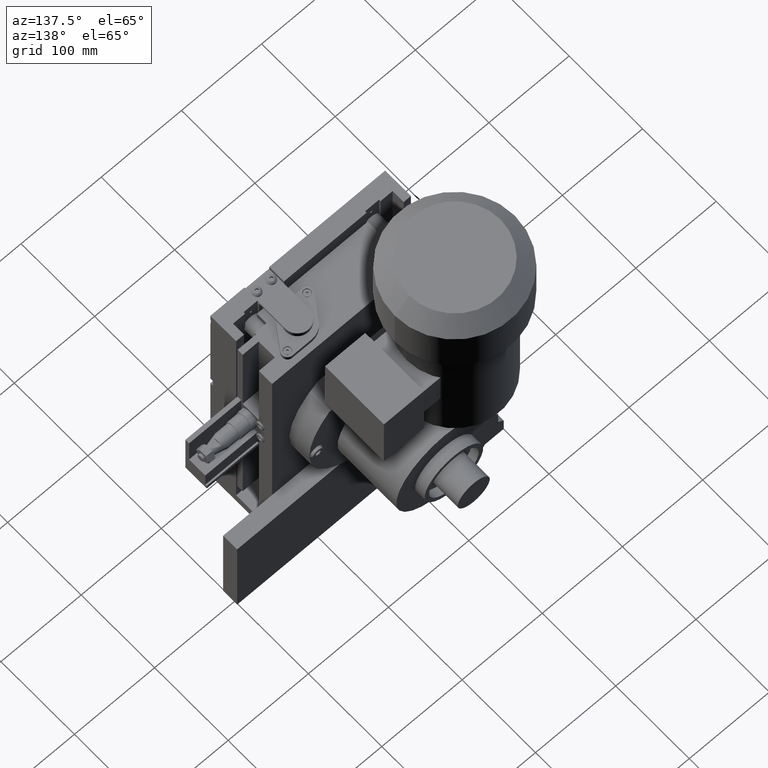
[diagram: clean part render]
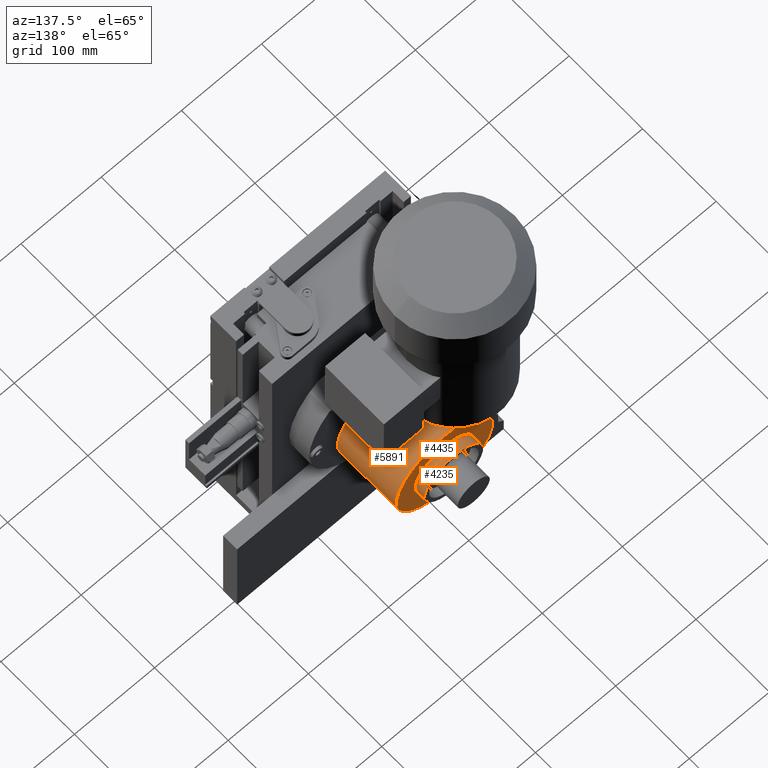
[diagram: same view with one multi-face feature highlighted, each face labeled with its STEP entity id]
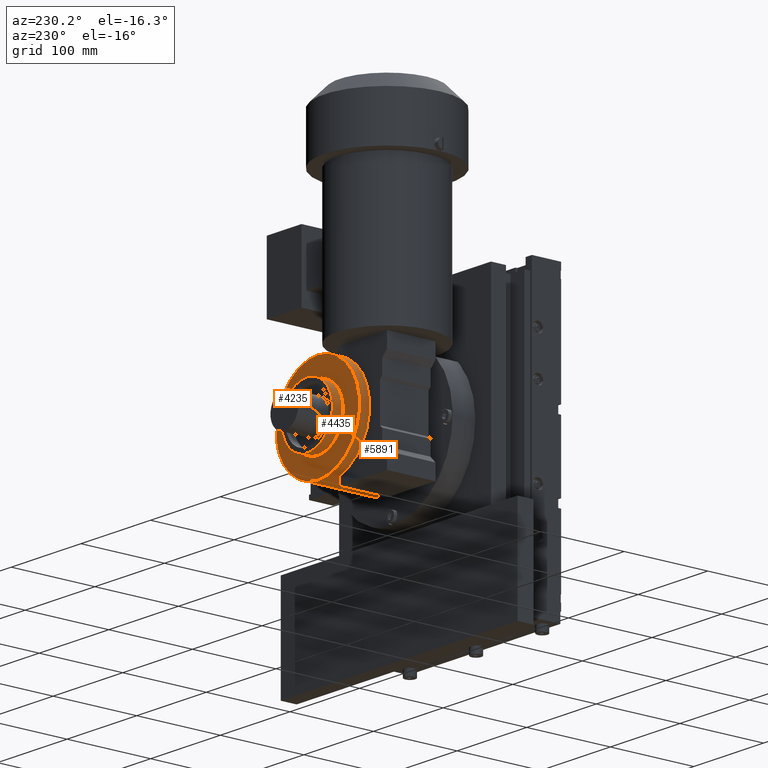
[diagram: same view with one multi-face feature highlighted, each face labeled with its STEP entity id]
A machine part, auxiliary view. The highlighted faces form ONE feature: a stepped (counterbored) hole: 2 coaxial cylindrical walls of radii 36.5 -> 60 mm joined by 1 annular planar shoulder face(s). The faces share edges in the B-rep.
A second angle (auxiliary view) of the same feature is appended — it is thin or edge-on in the first view.
Their STEP definitions:
[1] entity #5891 (Cylinder):
#5891=ADVANCED_FACE('',(#12133,#12134,#12135),#12136,.T.);
#12133=FACE_BOUND('',#21507,.T.);
#12134=FACE_OUTER_BOUND('',#21508,.T.);
#12135=FACE_OUTER_BOUND('',#21509,.T.);
#12136=CYLINDRICAL_SURFACE('',#21510,60.0000000000000);
#21507=EDGE_LOOP('',(#34760,#34761,#34762,#34763));
#21508=EDGE_LOOP('',(#34764));
#21509=EDGE_LOOP('',(#34765));
#21510=AXIS2_PLACEMENT_3D('',#34766,#34767,#34768);
#34760=ORIENTED_EDGE('',*,*,#52199,.T.);
#34761=ORIENTED_EDGE('',*,*,#48771,.F.);
#34762=ORIENTED_EDGE('',*,*,#52200,.F.);
#34763=ORIENTED_EDGE('',*,*,#52201,.F.);
#34764=ORIENTED_EDGE('',*,*,#48273,.F.);
#34765=ORIENTED_EDGE('',*,*,#49624,.T.);
#34766=CARTESIAN_POINT('',(34.5307407501678,4.55051521335584,-608.967946454535));
#34767=DIRECTION('',(0.000000000000000,-1.00000000000000,0.000000000000000));
#34768=DIRECTION('',(0.000000000000000,0.000000000000000,1.00000000000000));
#48273=EDGE_CURVE('',#56567,#56567,#56568,.T.);
#48771=EDGE_CURVE('',#57460,#57461,#57462,.T.);
#49624=EDGE_CURVE('',#58933,#58933,#58934,.T.);
#52199=EDGE_CURVE('',#63066,#57461,#63067,.F.);
#52200=EDGE_CURVE('',#63068,#57460,#63069,.F.);
#52201=EDGE_CURVE('',#63066,#63068,#63070,.F.);
#56567=VERTEX_POINT('',#68730);
#56568=CIRCLE('',#68731,60.0000000000000);
#57460=VERTEX_POINT('',#70112);
#57461=VERTEX_POINT('',#70113);
#57462=LINE('',#70114,#70115);
#58933=VERTEX_POINT('',#72246);
#58934=CIRCLE('',#72247,60.0000000000000);
#63066=VERTEX_POINT('',#78398);
#63067=CIRCLE('',#78399,60.0000000000000);
#63068=VERTEX_POINT('',#78400);
#63069=CIRCLE('',#78401,60.0000000000000);
#63070=LINE('',#78402,#78403);
#68730=CARTESIAN_POINT('',(34.5307407501678,4.55051521335584,-668.967946454535));
#68731=AXIS2_PLACEMENT_3D('',#85946,#85947,#85948);
#70112=CARTESIAN_POINT('',(18.5307407501678,-7.44948478664413,-666.795275633739));
#70113=CARTESIAN_POINT('',(18.5307407501678,-65.4494847866441,-666.795275633739));
#70114=CARTESIAN_POINT('',(18.5307407501678,4.55051521335584,-666.795275633739));
#70115=VECTOR('',#86415,1.00000000000000);
#72246=CARTESIAN_POINT('',(34.5307407501678,-75.4494847866442,-668.967946454535));
#72247=AXIS2_PLACEMENT_3D('',#87210,#87211,#87212);
#78398=CARTESIAN_POINT('',(18.5307407501678,-65.4494847866441,-551.140617275331));
#78399=AXIS2_PLACEMENT_3D('',#89540,#89541,#89542);
#78400=CARTESIAN_POINT('',(18.5307407501678,-7.44948478664413,-551.140617275331));
#78401=AXIS2_PLACEMENT_3D('',#89543,#89544,#89545);
#78402=CARTESIAN_POINT('',(18.5307407501678,4.55051521335584,-551.140617275331));
#78403=VECTOR('',#89546,1.00000000000000);
#85946=CARTESIAN_POINT('',(34.5307407501678,4.55051521335584,-608.967946454535));
#85947=DIRECTION('',(0.000000000000000,1.00000000000000,0.000000000000000));
#85948=DIRECTION('',(0.000000000000000,0.000000000000000,-1.00000000000000));
#86415=DIRECTION('',(0.000000000000000,-1.00000000000000,0.000000000000000));
#87210=CARTESIAN_POINT('',(34.5307407501678,-75.4494847866442,-608.967946454535));
#87211=DIRECTION('',(0.000000000000000,1.00000000000000,0.000000000000000));
#87212=DIRECTION('',(0.000000000000000,0.000000000000000,-1.00000000000000));
#89540=CARTESIAN_POINT('',(34.5307407501678,-65.4494847866441,-608.967946454535));
#89541=DIRECTION('',(0.000000000000000,1.00000000000000,0.000000000000000));
#89542=DIRECTION('',(0.000000000000000,0.000000000000000,-1.00000000000000));
#89543=CARTESIAN_POINT('',(34.5307407501678,-7.44948478664413,-608.967946454535));
#89544=DIRECTION('',(0.000000000000000,1.00000000000000,0.000000000000000));
#89545=DIRECTION('',(0.000000000000000,0.000000000000000,-1.00000000000000));
#89546=DIRECTION('',(0.000000000000000,-1.00000000000000,0.000000000000000));
[2] entity #4435 (Cylinder):
#4435=ADVANCED_FACE('',(#9818,#9819),#9820,.T.);
#9818=FACE_OUTER_BOUND('',#18262,.T.);
#9819=FACE_OUTER_BOUND('',#18263,.T.);
#9820=CYLINDRICAL_SURFACE('',#18264,36.5000000000000);
#18262=EDGE_LOOP('',(#28534));
#18263=EDGE_LOOP('',(#28535));
#18264=AXIS2_PLACEMENT_3D('',#28536,#28537,#28538);
#28534=ORIENTED_EDGE('',*,*,#48829,.F.);
#28535=ORIENTED_EDGE('',*,*,#48272,.T.);
#28536=CARTESIAN_POINT('',(34.5307407501678,17.5505152133559,-608.967946454535));
#28537=DIRECTION('',(0.000000000000000,-1.00000000000000,0.000000000000000));
#28538=DIRECTION('',(0.000000000000000,0.000000000000000,1.00000000000000));
#48272=EDGE_CURVE('',#56565,#56565,#56566,.T.);
#48829=EDGE_CURVE('',#57561,#57561,#57562,.T.);
#56565=VERTEX_POINT('',#68728);
#56566=CIRCLE('',#68729,36.5000000000000);
#57561=VERTEX_POINT('',#70255);
#57562=CIRCLE('',#70256,36.5000000000000);
#68728=CARTESIAN_POINT('',(34.5307407501678,4.55051521335584,-645.467946454535));
#68729=AXIS2_PLACEMENT_3D('',#85943,#85944,#85945);
#70255=CARTESIAN_POINT('',(34.5307407501678,17.5505152133559,-645.467946454535));
#70256=AXIS2_PLACEMENT_3D('',#86466,#86467,#86468);
#85943=CARTESIAN_POINT('',(34.5307407501678,4.55051521335584,-608.967946454535));
#85944=DIRECTION('',(0.000000000000000,1.00000000000000,0.000000000000000));
#85945=DIRECTION('',(0.000000000000000,0.000000000000000,-1.00000000000000));
#86466=CARTESIAN_POINT('',(34.5307407501678,17.5505152133559,-608.967946454535));
#86467=DIRECTION('',(0.000000000000000,1.00000000000000,0.000000000000000));
#86468=DIRECTION('',(0.000000000000000,0.000000000000000,-1.00000000000000));
[3] entity #4235 (Plane):
#4235=ADVANCED_FACE('',(#9501,#9502),#9503,.T.);
#9501=FACE_BOUND('',#17945,.T.);
#9502=FACE_OUTER_BOUND('',#17946,.T.);
#9503=PLANE('',#17947);
#17945=EDGE_LOOP('',(#27658));
#17946=EDGE_LOOP('',(#27659));
#17947=AXIS2_PLACEMENT_3D('',#27660,#27661,#27662);
#27658=ORIENTED_EDGE('',*,*,#48272,.F.);
#27659=ORIENTED_EDGE('',*,*,#48273,.T.);
#27660=CARTESIAN_POINT('',(34.5307407501678,4.55051521335584,-608.967946454535));
#27661=DIRECTION('',(0.000000000000000,1.00000000000000,0.000000000000000));
#27662=DIRECTION('',(0.000000000000000,0.000000000000000,-1.00000000000000));
#48272=EDGE_CURVE('',#56565,#56565,#56566,.T.);
#48273=EDGE_CURVE('',#56567,#56567,#56568,.T.);
#56565=VERTEX_POINT('',#68728);
#56566=CIRCLE('',#68729,36.5000000000000);
#56567=VERTEX_POINT('',#68730);
#56568=CIRCLE('',#68731,60.0000000000000);
#68728=CARTESIAN_POINT('',(34.5307407501678,4.55051521335584,-645.467946454535));
#68729=AXIS2_PLACEMENT_3D('',#85943,#85944,#85945);
#68730=CARTESIAN_POINT('',(34.5307407501678,4.55051521335584,-668.967946454535));
#68731=AXIS2_PLACEMENT_3D('',#85946,#85947,#85948);
#85943=CARTESIAN_POINT('',(34.5307407501678,4.55051521335584,-608.967946454535));
#85944=DIRECTION('',(0.000000000000000,1.00000000000000,0.000000000000000));
#85945=DIRECTION('',(0.000000000000000,0.000000000000000,-1.00000000000000));
#85946=CARTESIAN_POINT('',(34.5307407501678,4.55051521335584,-608.967946454535));
#85947=DIRECTION('',(0.000000000000000,1.00000000000000,0.000000000000000));
#85948=DIRECTION('',(0.000000000000000,0.000000000000000,-1.00000000000000));